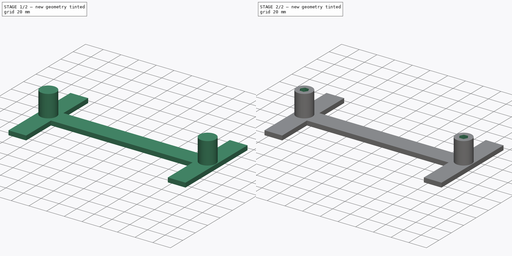
[diagram: build sequence overview — one tinted view per stage of 2, left to right]
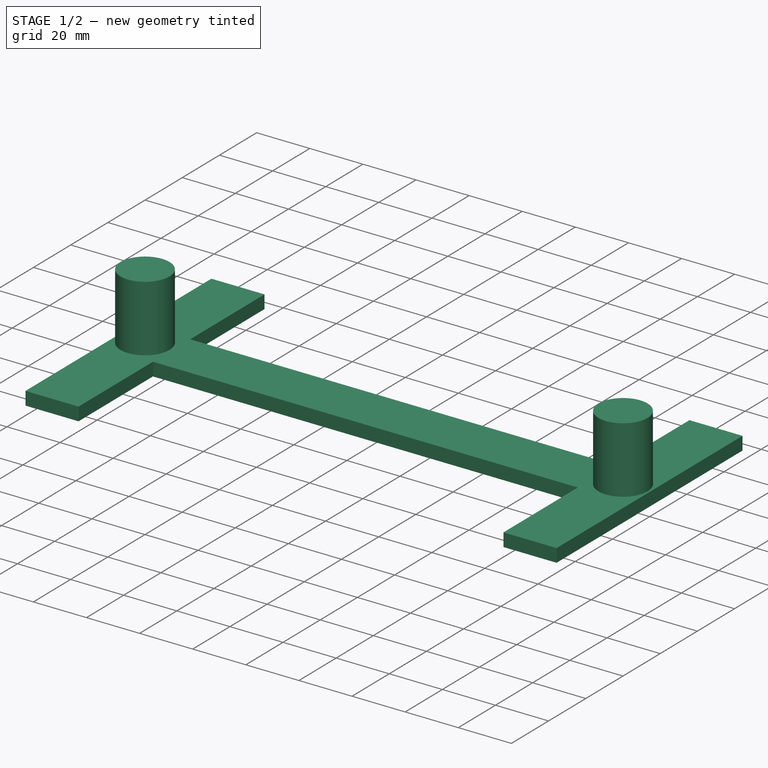
[diagram: stage 1 of 2 — iso view after this stage's code; geometry added in this stage tinted green]
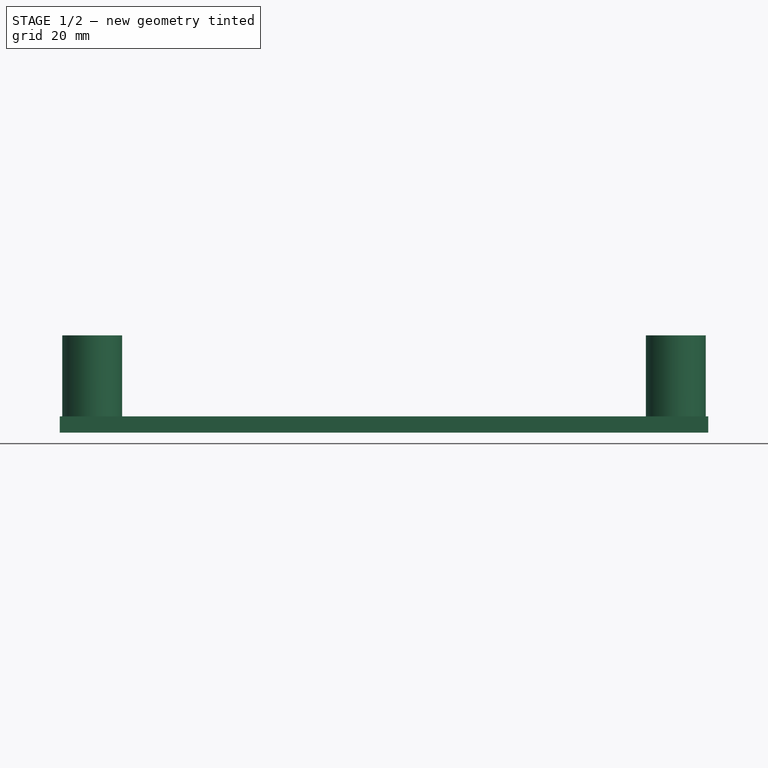
[diagram: stage 1 of 2 — front view after this stage's code; geometry added in this stage tinted green]
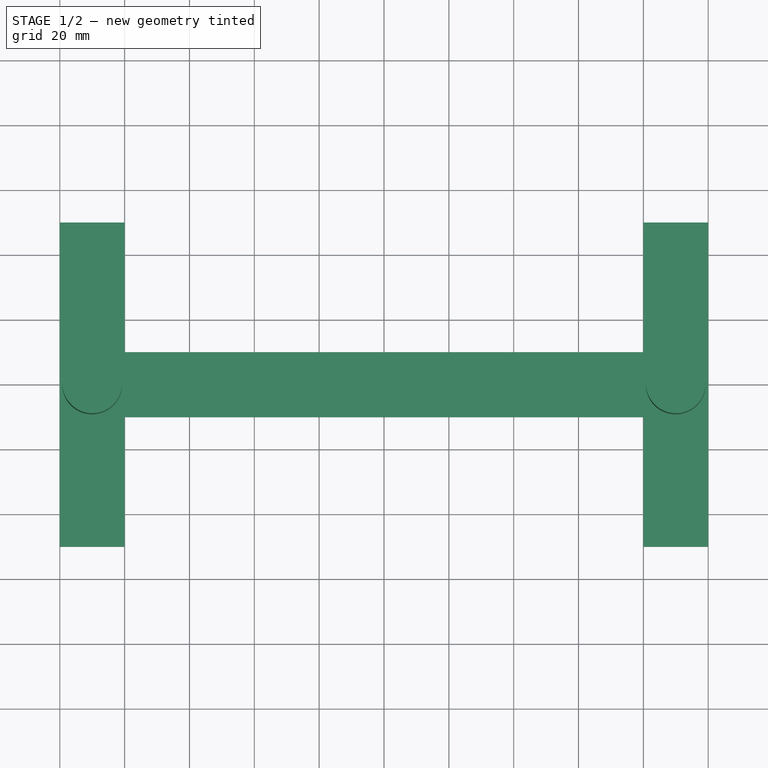
[diagram: stage 1 of 2 — top view after this stage's code; geometry added in this stage tinted green]
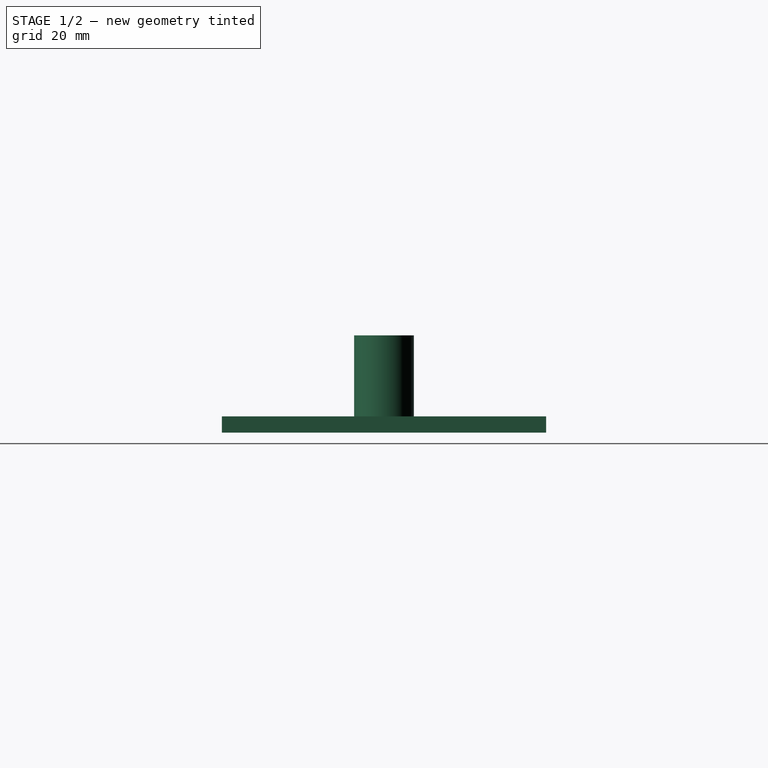
[diagram: stage 1 of 2 — right view after this stage's code; geometry added in this stage tinted green]
FCSTD DOCUMENT  (FreeCAD 0.16R6705 (Git))
Label: bilanciatore_modelli
License: All rights reserved
LicenseURL: http://it.wikipedia.org/wiki/<copyright redacted>
objects: Sketcher::SketchObject×5, PartDesign::Pad×2, PartDesign::Pocket×1, PartDesign::Mirrored×1
note: 12 computed .brp shape members not serialized (recipe doc carries the construction recipe); baked Part::Feature solids carry a one-line shape summary decoded from their .brp

FEATURE [Sketcher::SketchObject] Sketch
  sketch-geometry (7):
    g0: LineSegment StartX=0 StartY=13.217 StartZ=0 EndX=81.2292 EndY=13.217 EndZ=0
    g1: LineSegment StartX=81.2292 StartY=13.217 StartZ=0 EndX=81.2292 EndY=76.8436 EndZ=0
    g2: LineSegment StartX=81.2292 StartY=76.8436 StartZ=0 EndX=115.373 EndY=76.8436 EndZ=0
    g3: LineSegment StartX=115.373 StartY=76.8436 StartZ=0 EndX=115.373 EndY=-76.8436 EndZ=0
    g4: LineSegment StartX=115.373 StartY=-76.8436 StartZ=0 EndX=81.2292 EndY=-76.8436 EndZ=0
    g5: LineSegment StartX=81.2292 StartY=-76.8436 StartZ=0 EndX=81.2292 EndY=-13.217 EndZ=0
    g6: LineSegment StartX=81.2292 StartY=-13.217 StartZ=0 EndX=0 EndY=-13.217 EndZ=0
  constraints (16):
    c: Coincident(g0,g1)
    c: Coincident(g1,g2)
    c: Coincident(g2,g3)
    c: Coincident(g3,g4)
    c: Coincident(g4,g5)
    c: Coincident(g5,g6)
    c: Horizontal(g0)
    c: Horizontal(g6)
    c: Horizontal(g4)
    c: Horizontal(g2)
    c: Vertical(g3)
    c: Vertical(g5)
    c: Vertical(g1)
    c: Symmetric(g2,g3,g-1)
    c: Symmetric(g0,g5,g-1)
    c: PointOnObject(g0,g-2)
FEATURE [Sketcher::SketchObject] MirroredSketch
  sketch-geometry (7):
    g0: LineSegment StartX=0 StartY=13.217 StartZ=0 EndX=-81.2292 EndY=13.217 EndZ=0
    g1: LineSegment StartX=-81.2292 StartY=13.217 StartZ=0 EndX=-81.2292 EndY=76.8436 EndZ=0
    g2: LineSegment StartX=-81.2292 StartY=76.8436 StartZ=0 EndX=-115.373 EndY=76.8436 EndZ=0
    g3: LineSegment StartX=-115.373 StartY=76.8436 StartZ=0 EndX=-115.373 EndY=-76.8436 EndZ=0
    g4: LineSegment StartX=-115.373 StartY=-76.8436 StartZ=0 EndX=-81.2292 EndY=-76.8436 EndZ=0
    g5: LineSegment StartX=-81.2292 StartY=-76.8436 StartZ=0 EndX=-81.2292 EndY=-13.217 EndZ=0
    g6: LineSegment StartX=-81.2292 StartY=-13.217 StartZ=0 EndX=0 EndY=-13.217 EndZ=0
  constraints (13):
    c: Coincident(g0,g1)
    c: Coincident(g1,g2)
    c: Coincident(g2,g3)
    c: Coincident(g3,g4)
    c: Coincident(g4,g5)
    c: Coincident(g5,g6)
    c: Horizontal(g0)
    c: Horizontal(g6)
    c: Horizontal(g4)
    c: Horizontal(g2)
    c: Vertical(g3)
    c: Vertical(g5)
    c: Vertical(g1)
FEATURE [Sketcher::SketchObject] Sketch001
  sketch-geometry (14):
    g0: LineSegment StartX=0 StartY=10 StartZ=0 EndX=80 EndY=10 EndZ=0
    g1: LineSegment StartX=80 StartY=10 StartZ=0 EndX=80 EndY=50 EndZ=0
    g2: LineSegment StartX=80 StartY=50 StartZ=0 EndX=100 EndY=50 EndZ=0
    g3: LineSegment StartX=100 StartY=50 StartZ=0 EndX=100 EndY=-50 EndZ=0
    g4: LineSegment StartX=100 StartY=-50 StartZ=0 EndX=80 EndY=-50 EndZ=0
    g5: LineSegment StartX=80 StartY=-50 StartZ=0 EndX=80 EndY=-10 EndZ=0
    g6: LineSegment StartX=80 StartY=-10 StartZ=0 EndX=0 EndY=-10 EndZ=0
    g7: LineSegment StartX=0 StartY=10 StartZ=0 EndX=-80 EndY=10 EndZ=0
    g8: LineSegment StartX=-80 StartY=10 StartZ=0 EndX=-80 EndY=50 EndZ=0
    g9: LineSegment StartX=-80 StartY=50 StartZ=0 EndX=-100 EndY=50 EndZ=0
    g10: LineSegment StartX=-100 StartY=50 StartZ=0 EndX=-100 EndY=-50 EndZ=0
    g11: LineSegment StartX=-100 StartY=-50 StartZ=0 EndX=-80 EndY=-50 EndZ=0
    g12: LineSegment StartX=-80 StartY=-50 StartZ=0 EndX=-80 EndY=-10 EndZ=0
    g13: LineSegment StartX=-80 StartY=-10 StartZ=0 EndX=0 EndY=-10 EndZ=0
  constraints (42):
    c: Coincident(g0,g1)
    c: Coincident(g1,g2)
    c: Coincident(g2,g3)
    c: Coincident(g3,g4)
    c: Coincident(g4,g5)
    c: Coincident(g5,g6)
    c: Horizontal(g0)
    c: Horizontal(g6)
    c: Horizontal(g4)
    c: Horizontal(g2)
    c: Vertical(g3)
    c: Vertical(g5)
    c: Vertical(g1)
    c: Symmetric(g2,g3,g-1)
    c: Symmetric(g0,g5,g-1)
    c: PointOnObject(g0,g-2)
    c: Coincident(g7,g8)
    c: Coincident(g8,g9)
    c: Coincident(g9,g10)
    c: Coincident(g10,g11)
    c: Coincident(g11,g12)
    c: Coincident(g12,g13)
    c: Horizontal(g7)
    c: Horizontal(g13)
    c: Horizontal(g11)
    c: Horizontal(g9)
    c: Vertical(g10)
    c: Vertical(g12)
    c: Vertical(g8)
    c: Coincident(g7,g0)
    c: Coincident(g13,g6)
    c: Equal(g9,g2)
    c: Equal(g10,g3)
    c: Equal(g11,g2)
    c: Symmetric(g7,g0,g-2)
    c: Equal(g8,g12)
    c: Equal(g12,g5)
    c: Equal(g5,g1)
    c: DistanceX(g9,g2) = 200
    c: DistanceX(g9,g8) = 20
    c: DistanceY(g12,g7) = 20
    c: DistanceY(g10,g9) = 100
FEATURE [PartDesign::Pad] Pad
  Length = 5
  Length2 = 100
  Sketch = -> Sketch001
  Type = 0
FEATURE [Sketcher::SketchObject] Sketch002
  Placement = pos=(0,0,5) rot=(0,0,1;0rad)
  Support = -> Pad [Face16]
  sketch-geometry (2):
    g0: Circle CenterX=90 CenterY=0 CenterZ=0 NormalX=0 NormalY=0 NormalZ=1 Radius=9.22874
    g1: Circle CenterX=-90 CenterY=0 CenterZ=0 NormalX=0 NormalY=0 NormalZ=1 Radius=9.22874
  constraints (5):
    c: Equal(g1,g0)
    c: PointOnObject(g1,g-1)
    c: PointOnObject(g0,g-1)
    c: Symmetric(g1,g0,g-2)
    c: DistanceX(g1,g0) = 180
FEATURE [PartDesign::Pad] Pad001
  Length = 25
  Length2 = 100
  Sketch = -> Sketch002
  Type = 0
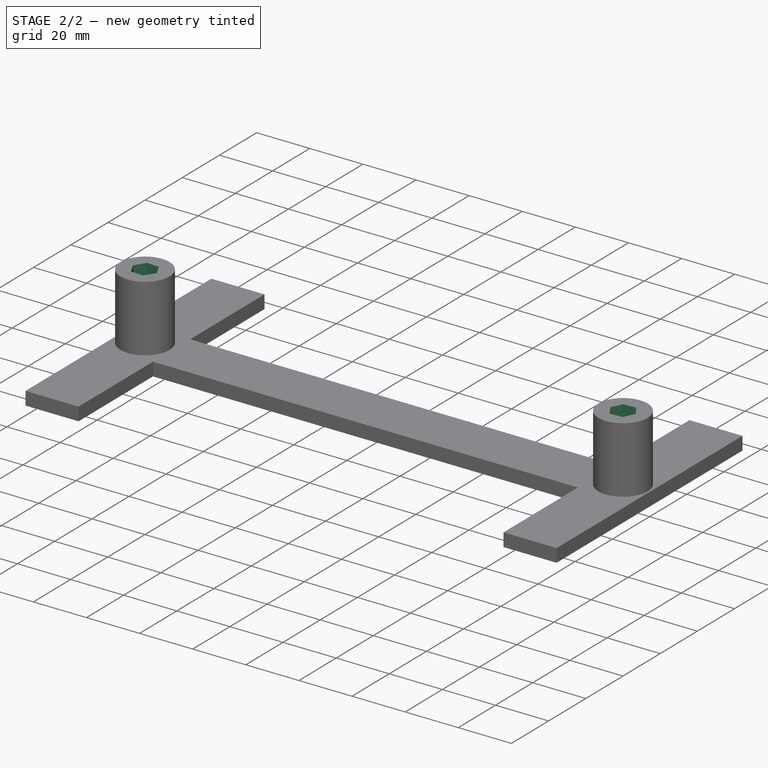
[diagram: stage 2 of 2 — iso view after this stage's code; geometry added in this stage tinted green]
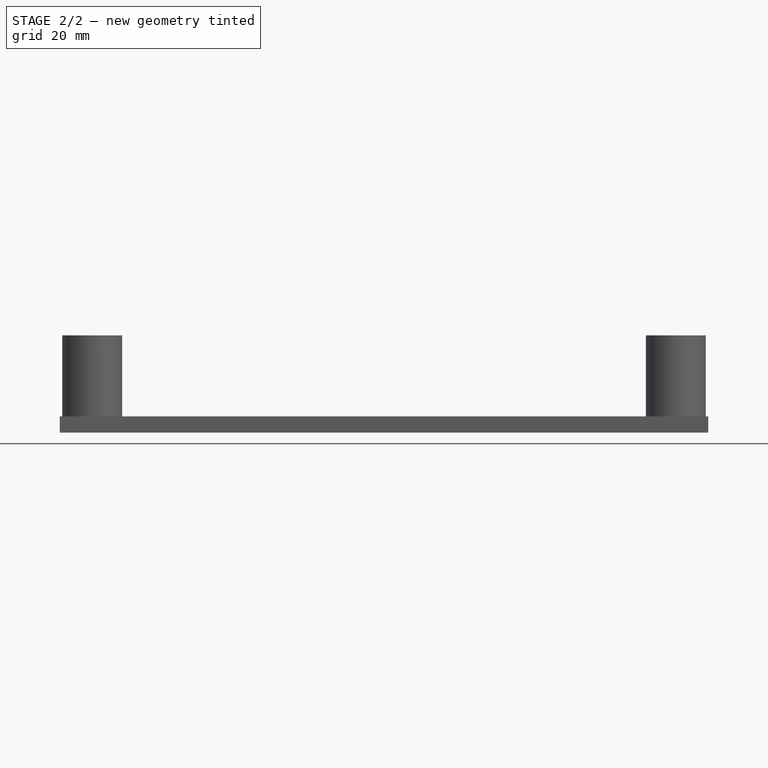
[diagram: stage 2 of 2 — front view after this stage's code; geometry added in this stage tinted green]
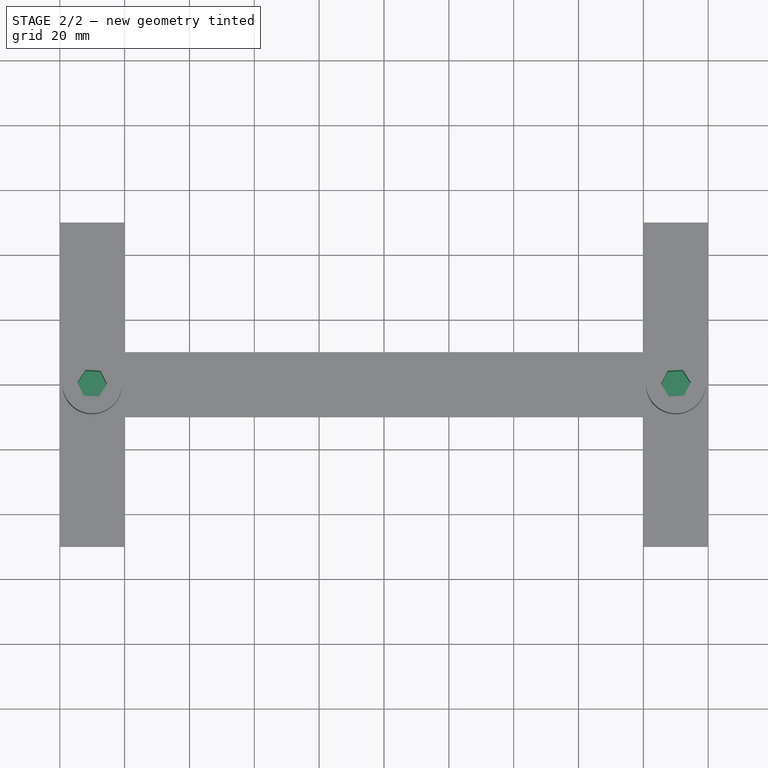
[diagram: stage 2 of 2 — top view after this stage's code; geometry added in this stage tinted green]
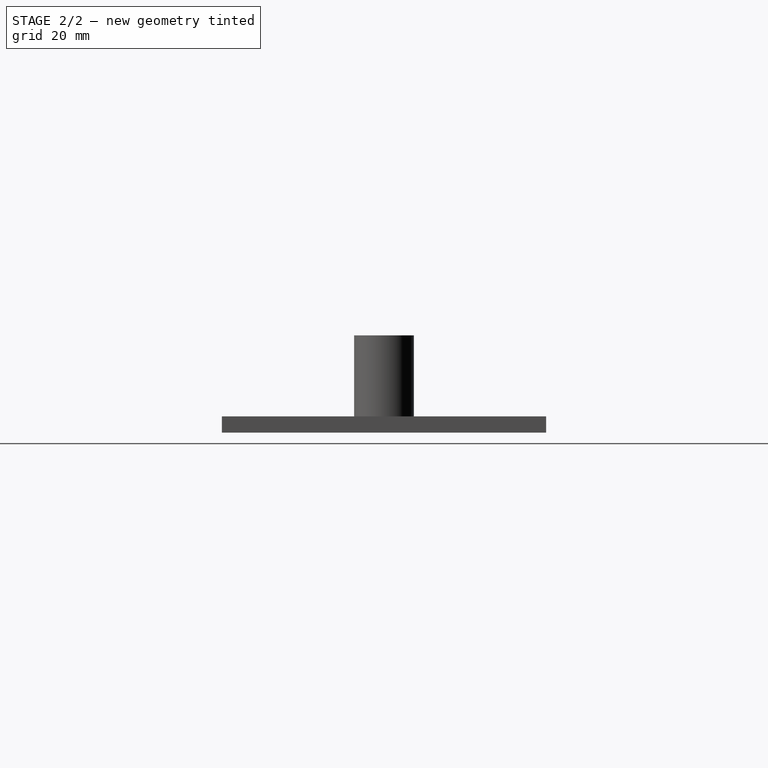
[diagram: stage 2 of 2 — right view after this stage's code; geometry added in this stage tinted green]
FEATURE [Sketcher::SketchObject] Sketch003
  ExternalGeometry = -> [Pad001]
  Placement = pos=(0,0,30) rot=(0,0,1;0rad)
  Support = -> Pad001 [Face20]
  sketch-geometry (7):
    g0: LineSegment StartX=-87.4806 StartY=3.87115 StartZ=0 EndX=-92.0928 EndY=4.11746 EndZ=0
    g1: LineSegment StartX=-92.0928 StartY=4.11746 StartZ=0 EndX=-94.6122 EndY=0.246312 EndZ=0
    g2: LineSegment StartX=-94.6122 StartY=0.246312 StartZ=0 EndX=-92.5194 EndY=-3.87115 EndZ=0
    g3: LineSegment StartX=-92.5194 StartY=-3.87115 StartZ=0 EndX=-87.9072 EndY=-4.11746 EndZ=0
    g4: LineSegment StartX=-87.9072 StartY=-4.11746 StartZ=0 EndX=-85.3878 EndY=-0.246312 EndZ=0
    g5: LineSegment StartX=-85.3878 StartY=-0.246312 StartZ=0 EndX=-87.4806 EndY=3.87115 EndZ=0
    g6: Circle [constr] CenterX=-90 CenterY=0 CenterZ=0 NormalX=0 NormalY=0 NormalZ=1 Radius=4.6188
  constraints (15):
    c: Coincident(g0,g1)
    c: Coincident(g1,g2)
    c: Coincident(g2,g3)
    c: Coincident(g3,g4)
    c: Coincident(g4,g5)
    c: Coincident(g5,g0)
    c: Equal(g0, g1-g5) x5
    c: PointOnObject(g0,g6)
    c: PointOnObject(g1,g6)
    c: PointOnObject(g2,g6)
    c: PointOnObject(g3,g6)
    c: PointOnObject(g4,g6)
    c: PointOnObject(g5,g6)
    c: Coincident(g-3,g6)
    c: Distance(g4,g0) = 8
FEATURE [PartDesign::Pocket] Pocket
  Length = 25
  Sketch = -> Sketch003
  Type = 0
FEATURE [PartDesign::Mirrored] Mirrored
  MirrorPlane = -> Sketch003 [V_Axis]
  Originals = -> [Pocket]
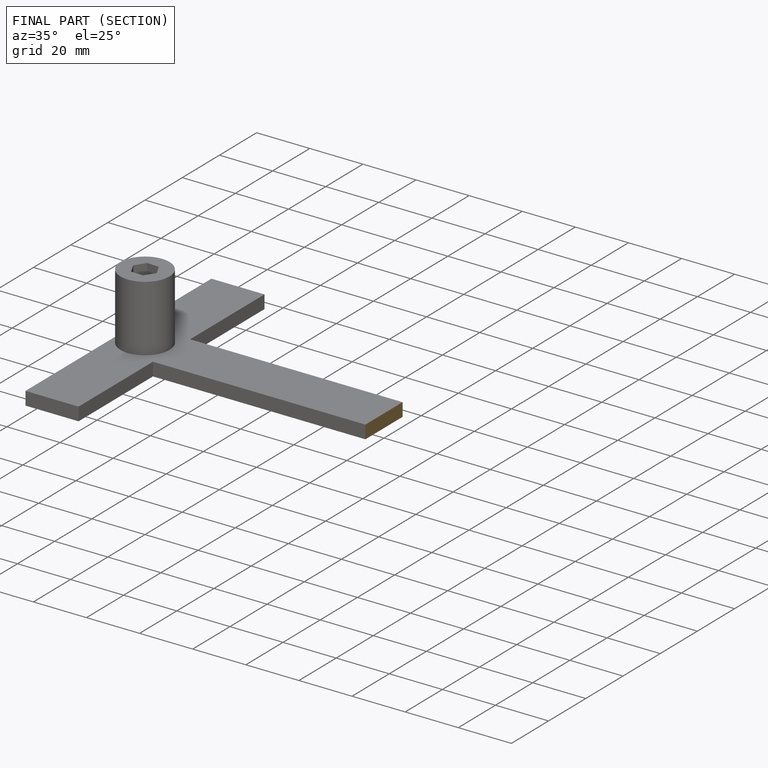
[diagram: finished part — half-section view (interior)]
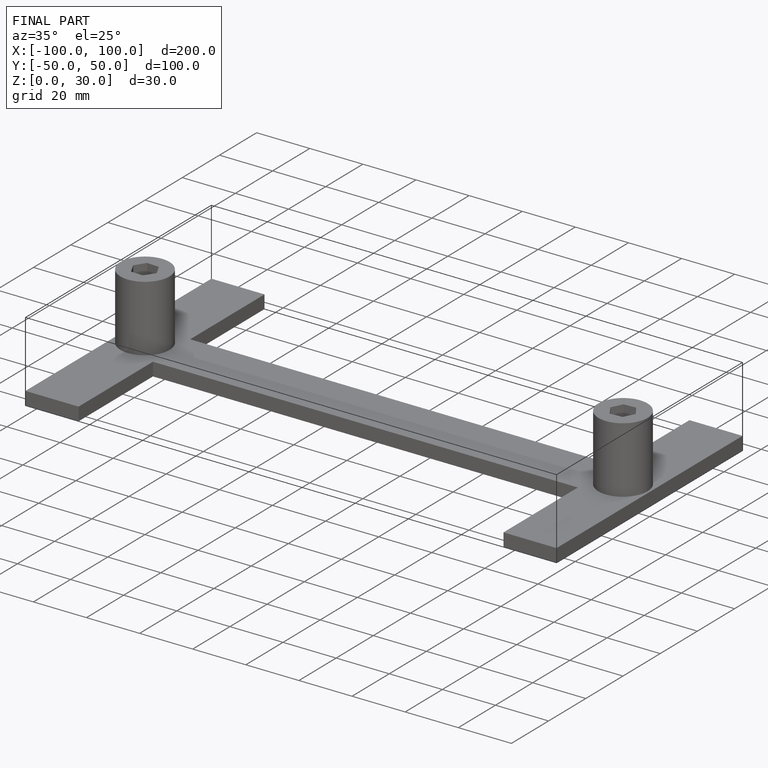
[diagram: finished part — iso view with bounding-box wireframe]
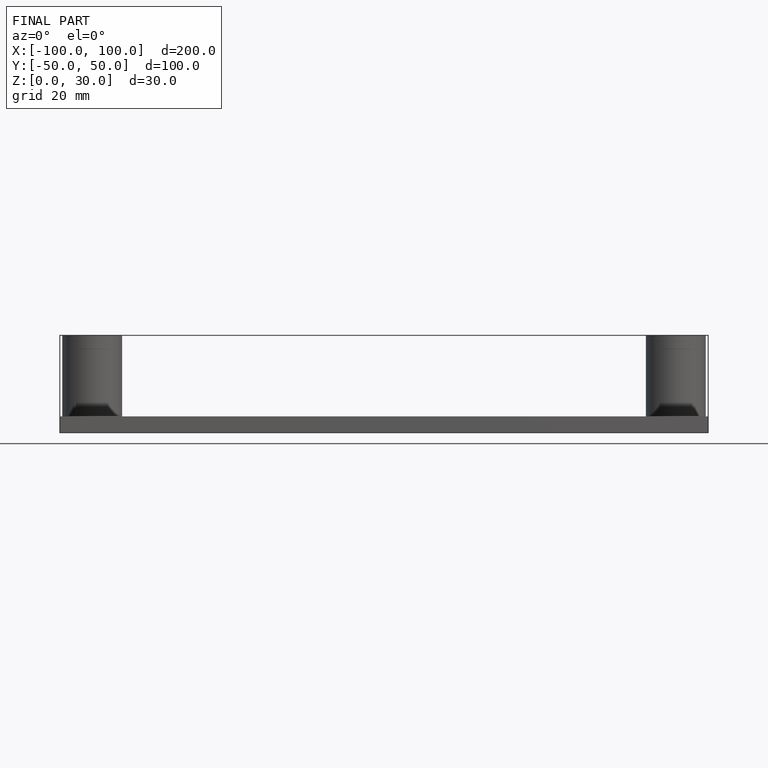
[diagram: finished part — front view with bounding-box wireframe]
